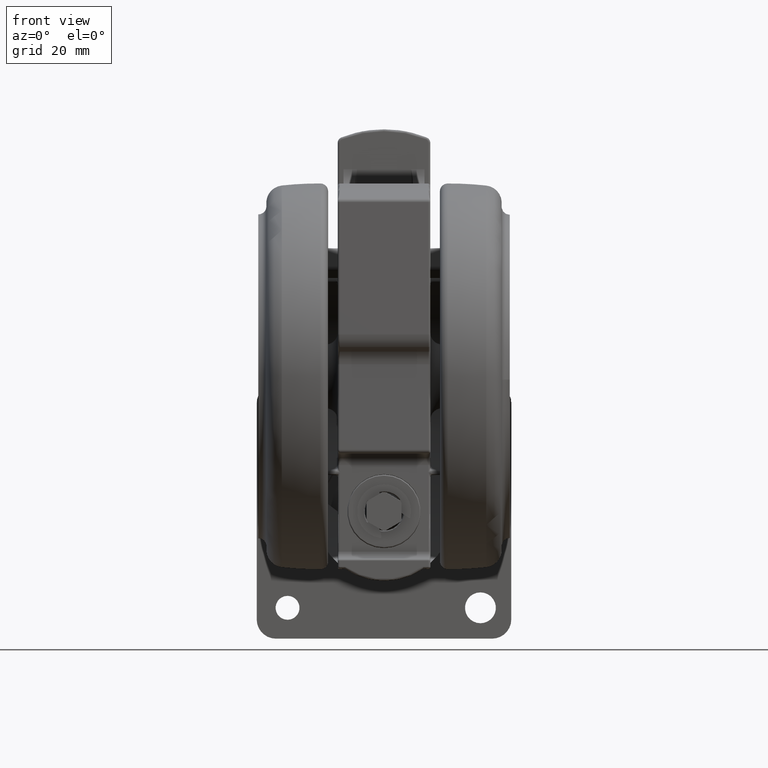
[diagram: clean part render]
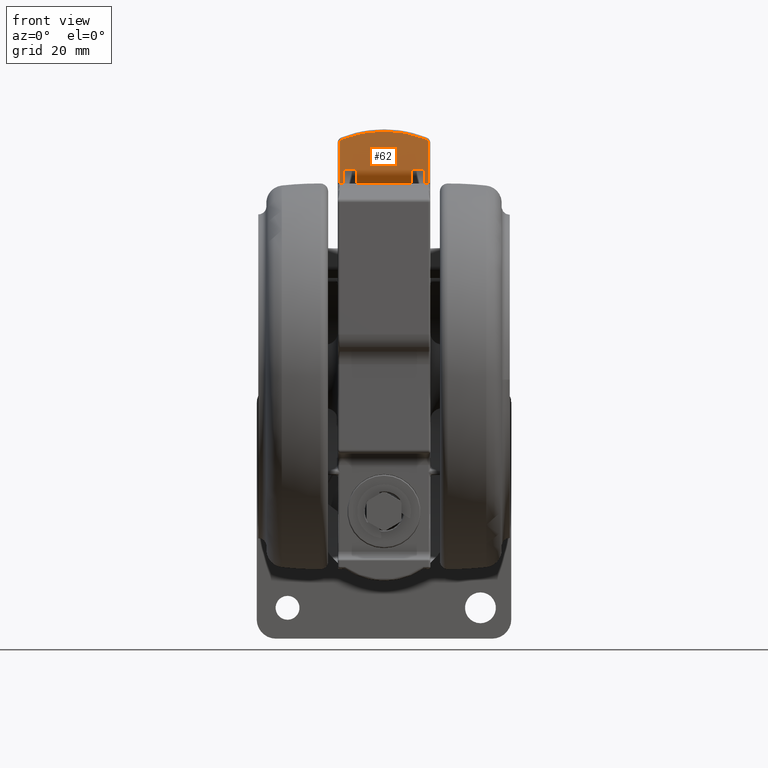
[diagram: same view with one face highlighted and labeled with its STEP entity id]
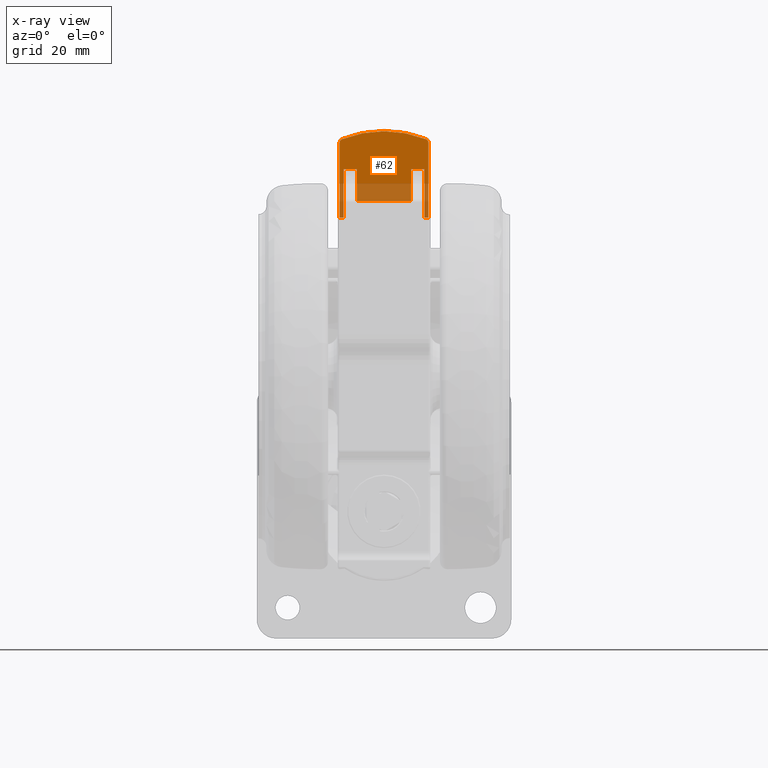
[diagram: x-ray of the same camera — body ghosted, the highlighted face saturated]
A machine part, front view. The second image highlights one B-rep face of the part: STEP entity #62.
The next image is the same camera in x-ray: the body ghosted, the highlighted face saturated — about 23% of this face is hidden behind the body in this view.
In plain terms, the highlighted planar face has unit normal (0, 1, 0.004).
Its self-contained STEP definition (entity closure, byte-faithful):
#62 = ADVANCED_FACE ( 'NONE', ( #4653 ), #20395, .F. ) ;
#1382 = VERTEX_POINT ( 'NONE', #16821 ) ;
#1523 = LINE ( 'NONE', #32908, #52593 ) ;
#3321 = DIRECTION ( 'NONE',  ( -0.0000000000000000000, -0.0000000000000000000, 1.000000000000000000 ) ) ;
#4653 = FACE_OUTER_BOUND ( 'NONE', #40414, .T. ) ;
#5966 = VERTEX_POINT ( 'NONE', #26616 ) ;
#6058 = CARTESIAN_POINT ( 'NONE',  ( -27.43541644922415300, -59.97726996313559800, -22.09999999999991300 ) ) ;
#7447 = ORIENTED_EDGE ( 'NONE', *, *, #75541, .T. ) ;
#7698 = CARTESIAN_POINT ( 'NONE',  ( -27.32431630957992400, -53.15289165335830300, -43.09999999999991600 ) ) ;
#9693 = CARTESIAN_POINT ( 'NONE',  ( -27.32431630957992400, -53.15289165335830300, -25.59999999999991600 ) ) ;
#10012 = VERTEX_POINT ( 'NONE', #38879 ) ;
#11105 = CARTESIAN_POINT ( 'NONE',  ( -27.43541644922415300, -59.97726996313559800, -43.09999999999991600 ) ) ;
#11598 = CARTESIAN_POINT ( 'NONE',  ( -27.45054919244873700, -60.90680583014680800, -21.73157894736833000 ) ) ;
#11802 = DIRECTION ( 'NONE',  ( 0.01627773473596146700, 0.9998675088989869000, -0.0000000000000000000 ) ) ;
#12257 = ORIENTED_EDGE ( 'NONE', *, *, #57640, .T. ) ;
#12519 = DIRECTION ( 'NONE',  ( 0.01627773473596161300, 0.9998675088989870100, 0.0000000000000000000 ) ) ;
#14435 = LINE ( 'NONE', #50228, #63574 ) ;
#15328 = VECTOR ( 'NONE', #3321, 1000.000000000000000 ) ;
#15598 = LINE ( 'NONE', #51045, #81716 ) ;
#15929 = CARTESIAN_POINT ( 'NONE',  ( -27.32431630957992400, -53.15289165335830300, -39.59999999999991600 ) ) ;
#15992 = CIRCLE ( 'NONE', #33634, 1.000000000000000000 ) ;
#16106 = CARTESIAN_POINT ( 'NONE',  ( -27.45054919244873700, -60.90680583014680800, -43.46842105263149800 ) ) ;
#16289 = CARTESIAN_POINT ( 'NONE',  ( -27.32431630957992400, -53.15289165335830300, -22.09999999999991300 ) ) ;
#16736 = VECTOR ( 'NONE', #20324, 1000.000000000000100 ) ;
#16821 = CARTESIAN_POINT ( 'NONE',  ( -27.18934762737441300, -44.86237689530258900, -25.59999999999991600 ) ) ;
#17611 = DIRECTION ( 'NONE',  ( 0.01627773473596161300, 0.9998675088989870100, 0.0000000000000000000 ) ) ;
#17781 = VECTOR ( 'NONE', #75928, 1000.000000000000100 ) ;
#18022 = DIRECTION ( 'NONE',  ( 0.0000000000000000000, 0.0000000000000000000, 1.000000000000000000 ) ) ;
#18741 = EDGE_CURVE ( 'NONE', #29110, #64701, #19116, .T. ) ;
#18898 = ORIENTED_EDGE ( 'NONE', *, *, #65459, .T. ) ;
#19010 = DIRECTION ( 'NONE',  ( 0.01627773473596140100, 0.9998675088989869000, 0.0000000000000000000 ) ) ;
#19116 = LINE ( 'NONE', #43459, #34151 ) ;
#19355 = EDGE_CURVE ( 'NONE', #61541, #65353, #56088, .T. ) ;
#19375 = LINE ( 'NONE', #54579, #15328 ) ;
#20324 = DIRECTION ( 'NONE',  ( 0.01627773473596146700, 0.9998675088989869000, 0.0000000000000000000 ) ) ;
#20395 = PLANE ( 'NONE',  #37557 ) ;
#20727 = CARTESIAN_POINT ( 'NONE',  ( -27.00413326732356700, -33.48549775331522900, -32.59999999999991600 ) ) ;
#20954 = ORIENTED_EDGE ( 'NONE', *, *, #36929, .F. ) ;
#22550 = EDGE_CURVE ( 'NONE', #1382, #79571, #15598, .T. ) ;
#22780 = EDGE_CURVE ( 'NONE', #58597, #39970, #41885, .T. ) ;
#23625 = ORIENTED_EDGE ( 'NONE', *, *, #19355, .T. ) ;
#24533 = DIRECTION ( 'NONE',  ( 0.0000000000000000000, 0.0000000000000000000, 1.000000000000000000 ) ) ;
#24928 = CIRCLE ( 'NONE', #69107, 1.000000000000000000 ) ;
#26616 = CARTESIAN_POINT ( 'NONE',  ( -27.12020995974425100, -40.61556315704127900, -22.09999999999991300 ) ) ;
#27137 = DIRECTION ( 'NONE',  ( 0.01627773473596149200, 0.9998675088989869000, -1.881733940042637900E-015 ) ) ;
#29110 = VERTEX_POINT ( 'NONE', #69412 ) ;
#31891 = CARTESIAN_POINT ( 'NONE',  ( -27.09454825968090600, -39.03928116617150600, -22.09999999999991300 ) ) ;
#32078 = ORIENTED_EDGE ( 'NONE', *, *, #47772, .F. ) ;
#32908 = CARTESIAN_POINT ( 'NONE',  ( -27.32431630957992400, -53.15289165335830300, -40.09999999999991600 ) ) ;
#33199 = CARTESIAN_POINT ( 'NONE',  ( -27.18934762737441300, -44.86237689530258900, -39.59999999999991600 ) ) ;
#33269 = CARTESIAN_POINT ( 'NONE',  ( -27.49246530940240900, -63.48152302028484000, -44.59999999999991600 ) ) ;
#33634 = AXIS2_PLACEMENT_3D ( 'NONE', #11105, #55971, #17611 ) ;
#33687 = EDGE_CURVE ( 'NONE', #35146, #5966, #41876, .T. ) ;
#34151 = VECTOR ( 'NONE', #18022, 1000.000000000000000 ) ;
#34294 = EDGE_CURVE ( 'NONE', #47051, #48918, #48792, .T. ) ;
#35146 = VERTEX_POINT ( 'NONE', #16289 ) ;
#35613 = AXIS2_PLACEMENT_3D ( 'NONE', #20727, #65533, #27137 ) ;
#35648 = DIRECTION ( 'NONE',  ( -0.01627773473596146700, -0.9998675088989869000, 0.0000000000000000000 ) ) ;
#36474 = LINE ( 'NONE', #53000, #49461 ) ;
#36929 = EDGE_CURVE ( 'NONE', #63201, #64701, #51807, .T. ) ;
#37420 = ORIENTED_EDGE ( 'NONE', *, *, #33687, .T. ) ;
#37557 = AXIS2_PLACEMENT_3D ( 'NONE', #33269, #78089, #39709 ) ;
#37960 = CARTESIAN_POINT ( 'NONE',  ( -27.12020995974425100, -40.61556315704127900, -44.59999999999991600 ) ) ;
#38632 = ORIENTED_EDGE ( 'NONE', *, *, #22550, .T. ) ;
#38879 = CARTESIAN_POINT ( 'NONE',  ( -27.43541644922415300, -59.97726996313559800, -44.09999999999991600 ) ) ;
#39709 = DIRECTION ( 'NONE',  ( 0.01627773473596146700, 0.9998675088989869000, 0.0000000000000000000 ) ) ;
#39878 = VECTOR ( 'NONE', #19010, 1000.000000000000100 ) ;
#39970 = VERTEX_POINT ( 'NONE', #66343 ) ;
#40414 = EDGE_LOOP ( 'NONE', ( #74158, #46654, #48988, #38632, #7447, #37420, #12257, #79961, #32078, #23625, #60183, #18898, #58299, #20954 ) ) ;
#41876 = LINE ( 'NONE', #31891, #39878 ) ;
#41885 = LINE ( 'NONE', #48208, #73977 ) ;
#43459 = CARTESIAN_POINT ( 'NONE',  ( -27.12020995974425100, -40.61556315704127900, -44.59999999999991600 ) ) ;
#46654 = ORIENTED_EDGE ( 'NONE', *, *, #34294, .T. ) ;
#47051 = VERTEX_POINT ( 'NONE', #15929 ) ;
#47173 = EDGE_CURVE ( 'NONE', #10012, #65353, #15992, .T. ) ;
#47772 = EDGE_CURVE ( 'NONE', #61541, #39970, #24928, .T. ) ;
#48208 = CARTESIAN_POINT ( 'NONE',  ( -27.45169697674329600, -60.97730902005447700, -21.09999999999991300 ) ) ;
#48792 = LINE ( 'NONE', #33199, #16736 ) ;
#48918 = VERTEX_POINT ( 'NONE', #59994 ) ;
#48988 = ORIENTED_EDGE ( 'NONE', *, *, #66147, .T. ) ;
#49461 = VECTOR ( 'NONE', #53263, 1000.000000000000000 ) ;
#49905 = EDGE_CURVE ( 'NONE', #47051, #63201, #1523, .T. ) ;
#50228 = CARTESIAN_POINT ( 'NONE',  ( -27.49246530940240900, -63.48152302028484000, -44.09999999999991600 ) ) ;
#50930 = DIRECTION ( 'NONE',  ( -0.9998675088989870100, 0.01627773473596147100, 0.0000000000000000000 ) ) ;
#51045 = CARTESIAN_POINT ( 'NONE',  ( -27.32431630957992400, -53.15289165335830300, -25.59999999999991600 ) ) ;
#51807 = LINE ( 'NONE', #82326, #17781 ) ;
#52593 = VECTOR ( 'NONE', #71285, 1000.000000000000000 ) ;
#53000 = CARTESIAN_POINT ( 'NONE',  ( -27.32431630957992400, -53.15289165335830300, -25.09999999999991300 ) ) ;
#53263 = DIRECTION ( 'NONE',  ( 0.0000000000000000000, 0.0000000000000000000, 1.000000000000000000 ) ) ;
#53367 = CARTESIAN_POINT ( 'NONE',  ( -27.12020995974425100, -40.61556315704127900, -21.09999999999991300 ) ) ;
#54579 = CARTESIAN_POINT ( 'NONE',  ( -27.18934762737441300, -44.86237689530258900, -44.59999999999991600 ) ) ;
#55971 = DIRECTION ( 'NONE',  ( -0.9998675088989870100, 0.01627773473596147100, 0.0000000000000000000 ) ) ;
#56088 = CIRCLE ( 'NONE', #35613, 29.50000000000000400 ) ;
#57640 = EDGE_CURVE ( 'NONE', #5966, #58597, #64735, .T. ) ;
#58299 = ORIENTED_EDGE ( 'NONE', *, *, #18741, .T. ) ;
#58467 = CARTESIAN_POINT ( 'NONE',  ( -27.12020995974425100, -40.61556315704127900, -43.09999999999991600 ) ) ;
#58597 = VERTEX_POINT ( 'NONE', #53367 ) ;
#59994 = CARTESIAN_POINT ( 'NONE',  ( -27.18934762737441300, -44.86237689530258900, -39.60000000000491800 ) ) ;
#60183 = ORIENTED_EDGE ( 'NONE', *, *, #47173, .F. ) ;
#61541 = VERTEX_POINT ( 'NONE', #11598 ) ;
#62729 = VECTOR ( 'NONE', #24533, 1000.000000000000000 ) ;
#63201 = VERTEX_POINT ( 'NONE', #7698 ) ;
#63574 = VECTOR ( 'NONE', #11802, 1000.000000000000100 ) ;
#64701 = VERTEX_POINT ( 'NONE', #58467 ) ;
#64735 = LINE ( 'NONE', #37960, #62729 ) ;
#65353 = VERTEX_POINT ( 'NONE', #16106 ) ;
#65459 = EDGE_CURVE ( 'NONE', #10012, #29110, #14435, .T. ) ;
#65533 = DIRECTION ( 'NONE',  ( 0.9998675088989870100, -0.01627773473596147100, -0.0000000000000000000 ) ) ;
#66147 = EDGE_CURVE ( 'NONE', #48918, #1382, #19375, .T. ) ;
#66343 = CARTESIAN_POINT ( 'NONE',  ( -27.43541644922415300, -59.97726996313559800, -21.09999999999991300 ) ) ;
#69107 = AXIS2_PLACEMENT_3D ( 'NONE', #6058, #50930, #12519 ) ;
#69412 = CARTESIAN_POINT ( 'NONE',  ( -27.12020995974425100, -40.61556315704127900, -44.09999999999991600 ) ) ;
#71285 = DIRECTION ( 'NONE',  ( 0.0000000000000000000, 0.0000000000000000000, -1.000000000000000000 ) ) ;
#73977 = VECTOR ( 'NONE', #35648, 1000.000000000000100 ) ;
#74158 = ORIENTED_EDGE ( 'NONE', *, *, #49905, .F. ) ;
#75541 = EDGE_CURVE ( 'NONE', #79571, #35146, #36474, .T. ) ;
#75928 = DIRECTION ( 'NONE',  ( 0.01627773473596140100, 0.9998675088989869000, 0.0000000000000000000 ) ) ;
#78089 = DIRECTION ( 'NONE',  ( -0.9998675088989869000, 0.01627773473596146700, 0.0000000000000000000 ) ) ;
#79571 = VERTEX_POINT ( 'NONE', #9693 ) ;
#79961 = ORIENTED_EDGE ( 'NONE', *, *, #22780, .T. ) ;
#81716 = VECTOR ( 'NONE', #82941, 1000.000000000000100 ) ;
#82326 = CARTESIAN_POINT ( 'NONE',  ( -27.09454825968090600, -39.03928116617150600, -43.09999999999991600 ) ) ;
#82941 = DIRECTION ( 'NONE',  ( -0.01627773473596146700, -0.9998675088989869000, -0.0000000000000000000 ) ) ;